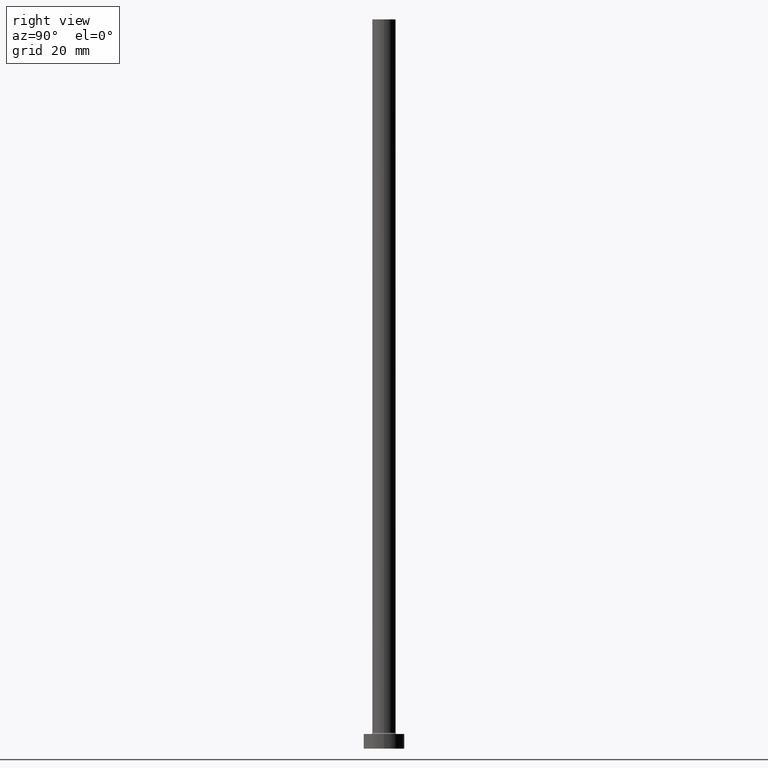
[diagram: clean part render]
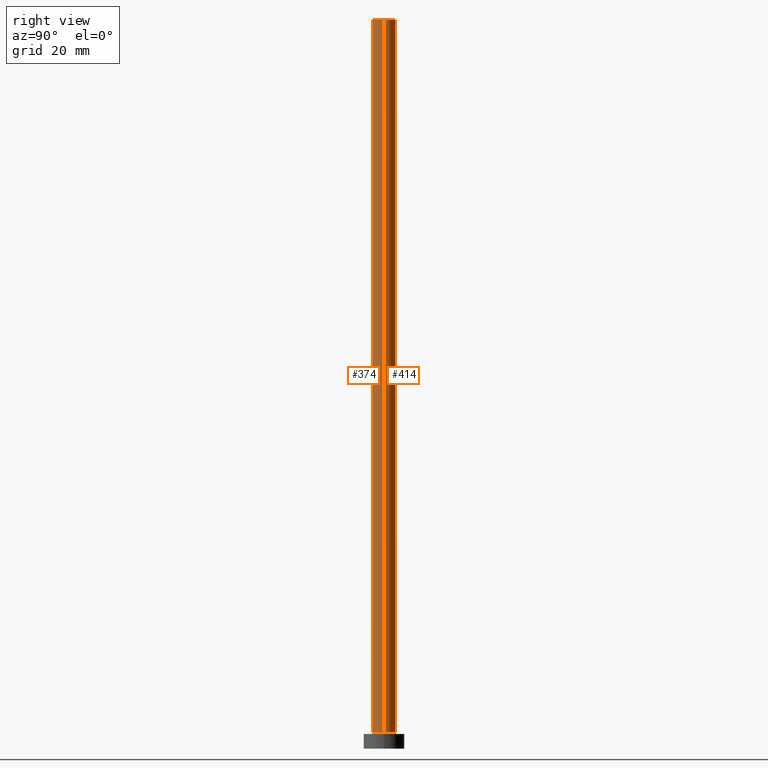
[diagram: same view with one multi-face feature highlighted, each face labeled with its STEP entity id]
A machine part, right view. The highlighted faces form ONE feature: a constant-radius fillet chain: 2 tangent blend faces with common blend radius 4 mm. The faces share edges in the B-rep.
Their STEP definitions:
[1] entity #374 (Cylinder):
#14 = CARTESIAN_POINT ( 'NONE',  ( 4.000000000000000000, 4.898587196589412829E-16, 5.500000000000005329 ) ) ;
#20 = DIRECTION ( 'NONE',  ( 1.000000000000000000, 0.000000000000000000, 0.000000000000000000 ) ) ;
#37 = EDGE_CURVE ( 'NONE', #128, #335, #90, .T. ) ;
#39 = ORIENTED_EDGE ( 'NONE', *, *, #316, .T. ) ;
#44 = CARTESIAN_POINT ( 'NONE',  ( 4.000000000000000000, 4.898587196589412829E-16, 250.0000000000000000 ) ) ;
#62 = EDGE_LOOP ( 'NONE', ( #75, #238, #39, #204 ) ) ;
#72 = VERTEX_POINT ( 'NONE', #408 ) ;
#73 = CIRCLE ( 'NONE', #395, 4.000000000000000000 ) ;
#75 = ORIENTED_EDGE ( 'NONE', *, *, #37, .F. ) ;
#90 = LINE ( 'NONE', #44, #409 ) ;
#92 = CARTESIAN_POINT ( 'NONE',  ( 0.000000000000000000, 0.000000000000000000, 5.500000000000005329 ) ) ;
#128 = VERTEX_POINT ( 'NONE', #397 ) ;
#139 = VERTEX_POINT ( 'NONE', #285 ) ;
#142 = DIRECTION ( 'NONE',  ( -0.000000000000000000, -0.000000000000000000, -1.000000000000000000 ) ) ;
#157 = CARTESIAN_POINT ( 'NONE',  ( -4.000000000000000000, 0.000000000000000000, 250.0000000000000000 ) ) ;
#169 = VECTOR ( 'NONE', #215, 1000.000000000000000 ) ;
#184 = EDGE_CURVE ( 'NONE', #72, #335, #73, .T. ) ;
#187 = LINE ( 'NONE', #157, #169 ) ;
#204 = ORIENTED_EDGE ( 'NONE', *, *, #184, .T. ) ;
#213 = DIRECTION ( 'NONE',  ( -1.000000000000000000, 0.000000000000000000, 0.000000000000000000 ) ) ;
#215 = DIRECTION ( 'NONE',  ( -0.000000000000000000, -0.000000000000000000, -1.000000000000000000 ) ) ;
#224 = CARTESIAN_POINT ( 'NONE',  ( 0.000000000000000000, 0.000000000000000000, 250.0000000000000000 ) ) ;
#237 = EDGE_CURVE ( 'NONE', #139, #128, #448, .T. ) ;
#238 = ORIENTED_EDGE ( 'NONE', *, *, #237, .F. ) ;
#281 = DIRECTION ( 'NONE',  ( -0.000000000000000000, -0.000000000000000000, -1.000000000000000000 ) ) ;
#285 = CARTESIAN_POINT ( 'NONE',  ( -4.000000000000000000, 0.000000000000000000, 250.0000000000000000 ) ) ;
#286 = FACE_OUTER_BOUND ( 'NONE', #62, .T. ) ;
#316 = EDGE_CURVE ( 'NONE', #139, #72, #187, .T. ) ;
#323 = AXIS2_PLACEMENT_3D ( 'NONE', #359, #281, #213 ) ;
#335 = VERTEX_POINT ( 'NONE', #14 ) ;
#359 = CARTESIAN_POINT ( 'NONE',  ( 0.000000000000000000, 0.000000000000000000, 250.0000000000000000 ) ) ;
#370 = DIRECTION ( 'NONE',  ( 0.000000000000000000, 0.000000000000000000, 1.000000000000000000 ) ) ;
#374 = ADVANCED_FACE ( 'NONE', ( #286 ), #404, .T. ) ;
#379 = AXIS2_PLACEMENT_3D ( 'NONE', #224, #413, #416 ) ;
#395 = AXIS2_PLACEMENT_3D ( 'NONE', #92, #370, #20 ) ;
#397 = CARTESIAN_POINT ( 'NONE',  ( 4.000000000000000000, 4.898587196589412829E-16, 250.0000000000000000 ) ) ;
#404 = CYLINDRICAL_SURFACE ( 'NONE', #323, 4.000000000000000000 ) ;
#408 = CARTESIAN_POINT ( 'NONE',  ( -4.000000000000000000, 0.000000000000000000, 5.500000000000005329 ) ) ;
#409 = VECTOR ( 'NONE', #142, 1000.000000000000000 ) ;
#413 = DIRECTION ( 'NONE',  ( 0.000000000000000000, 0.000000000000000000, 1.000000000000000000 ) ) ;
#416 = DIRECTION ( 'NONE',  ( 1.000000000000000000, 0.000000000000000000, 0.000000000000000000 ) ) ;
#448 = CIRCLE ( 'NONE', #379, 4.000000000000000000 ) ;
[2] entity #414 (Cylinder):
#14 = CARTESIAN_POINT ( 'NONE',  ( 4.000000000000000000, 4.898587196589412829E-16, 5.500000000000005329 ) ) ;
#15 = CARTESIAN_POINT ( 'NONE',  ( 0.000000000000000000, 0.000000000000000000, 250.0000000000000000 ) ) ;
#32 = ORIENTED_EDGE ( 'NONE', *, *, #316, .F. ) ;
#37 = EDGE_CURVE ( 'NONE', #128, #335, #90, .T. ) ;
#44 = CARTESIAN_POINT ( 'NONE',  ( 4.000000000000000000, 4.898587196589412829E-16, 250.0000000000000000 ) ) ;
#45 = CARTESIAN_POINT ( 'NONE',  ( 0.000000000000000000, 0.000000000000000000, 250.0000000000000000 ) ) ;
#65 = DIRECTION ( 'NONE',  ( 1.000000000000000000, 0.000000000000000000, 0.000000000000000000 ) ) ;
#72 = VERTEX_POINT ( 'NONE', #408 ) ;
#85 = EDGE_CURVE ( 'NONE', #128, #139, #98, .T. ) ;
#86 = CYLINDRICAL_SURFACE ( 'NONE', #403, 4.000000000000000000 ) ;
#90 = LINE ( 'NONE', #44, #409 ) ;
#98 = CIRCLE ( 'NONE', #353, 4.000000000000000000 ) ;
#113 = ORIENTED_EDGE ( 'NONE', *, *, #255, .T. ) ;
#114 = CIRCLE ( 'NONE', #314, 4.000000000000000000 ) ;
#128 = VERTEX_POINT ( 'NONE', #397 ) ;
#139 = VERTEX_POINT ( 'NONE', #285 ) ;
#142 = DIRECTION ( 'NONE',  ( -0.000000000000000000, -0.000000000000000000, -1.000000000000000000 ) ) ;
#157 = CARTESIAN_POINT ( 'NONE',  ( -4.000000000000000000, 0.000000000000000000, 250.0000000000000000 ) ) ;
#158 = DIRECTION ( 'NONE',  ( 0.000000000000000000, 0.000000000000000000, 1.000000000000000000 ) ) ;
#169 = VECTOR ( 'NONE', #215, 1000.000000000000000 ) ;
#180 = DIRECTION ( 'NONE',  ( 1.000000000000000000, 0.000000000000000000, 0.000000000000000000 ) ) ;
#187 = LINE ( 'NONE', #157, #169 ) ;
#215 = DIRECTION ( 'NONE',  ( -0.000000000000000000, -0.000000000000000000, -1.000000000000000000 ) ) ;
#221 = FACE_OUTER_BOUND ( 'NONE', #461, .T. ) ;
#253 = DIRECTION ( 'NONE',  ( -1.000000000000000000, 0.000000000000000000, 0.000000000000000000 ) ) ;
#255 = EDGE_CURVE ( 'NONE', #335, #72, #114, .T. ) ;
#276 = ORIENTED_EDGE ( 'NONE', *, *, #85, .F. ) ;
#285 = CARTESIAN_POINT ( 'NONE',  ( -4.000000000000000000, 0.000000000000000000, 250.0000000000000000 ) ) ;
#314 = AXIS2_PLACEMENT_3D ( 'NONE', #377, #158, #65 ) ;
#316 = EDGE_CURVE ( 'NONE', #139, #72, #187, .T. ) ;
#324 = DIRECTION ( 'NONE',  ( -0.000000000000000000, -0.000000000000000000, -1.000000000000000000 ) ) ;
#335 = VERTEX_POINT ( 'NONE', #14 ) ;
#353 = AXIS2_PLACEMENT_3D ( 'NONE', #15, #362, #180 ) ;
#362 = DIRECTION ( 'NONE',  ( 0.000000000000000000, 0.000000000000000000, 1.000000000000000000 ) ) ;
#377 = CARTESIAN_POINT ( 'NONE',  ( 0.000000000000000000, 0.000000000000000000, 5.500000000000005329 ) ) ;
#393 = ORIENTED_EDGE ( 'NONE', *, *, #37, .T. ) ;
#397 = CARTESIAN_POINT ( 'NONE',  ( 4.000000000000000000, 4.898587196589412829E-16, 250.0000000000000000 ) ) ;
#403 = AXIS2_PLACEMENT_3D ( 'NONE', #45, #324, #253 ) ;
#408 = CARTESIAN_POINT ( 'NONE',  ( -4.000000000000000000, 0.000000000000000000, 5.500000000000005329 ) ) ;
#409 = VECTOR ( 'NONE', #142, 1000.000000000000000 ) ;
#414 = ADVANCED_FACE ( 'NONE', ( #221 ), #86, .T. ) ;
#461 = EDGE_LOOP ( 'NONE', ( #276, #393, #113, #32 ) ) ;